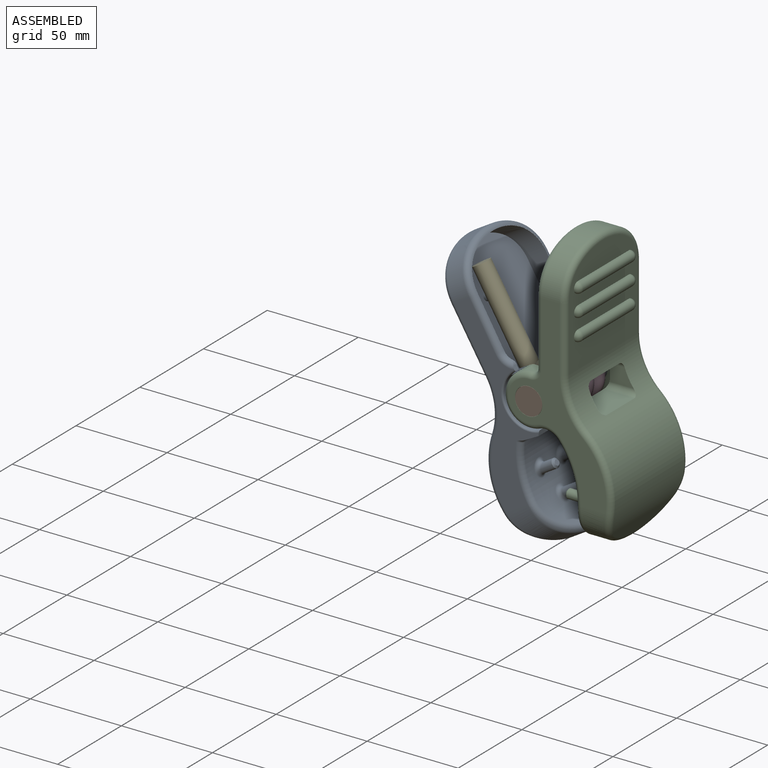
[diagram: assembled view]
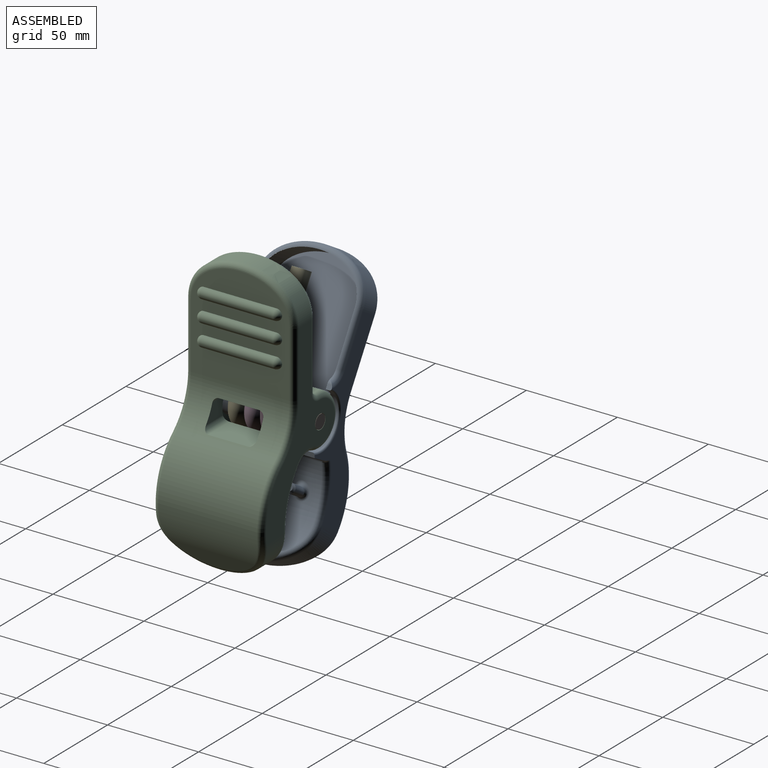
[diagram: assembled view, second angle]
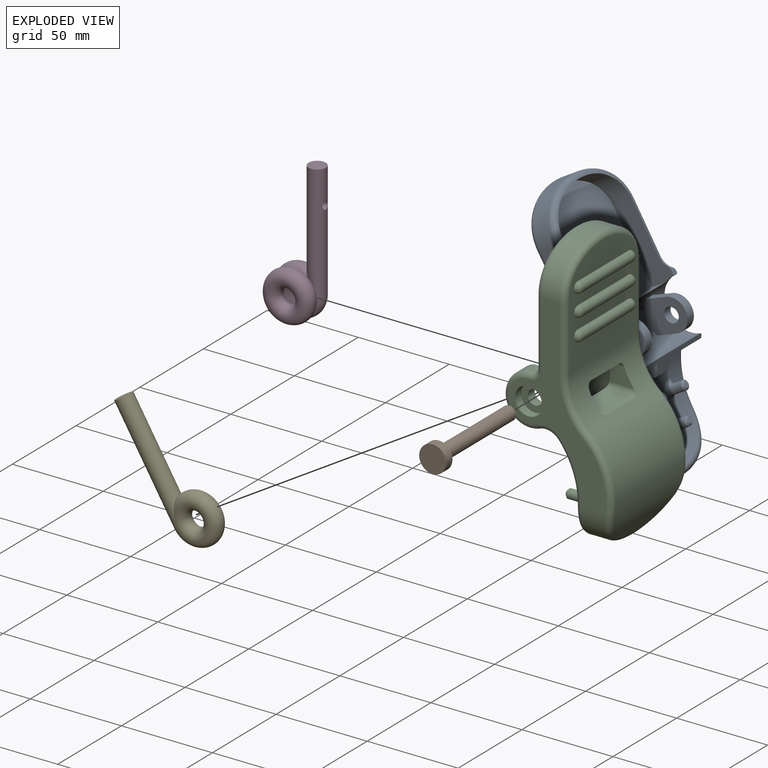
[diagram: exploded view]
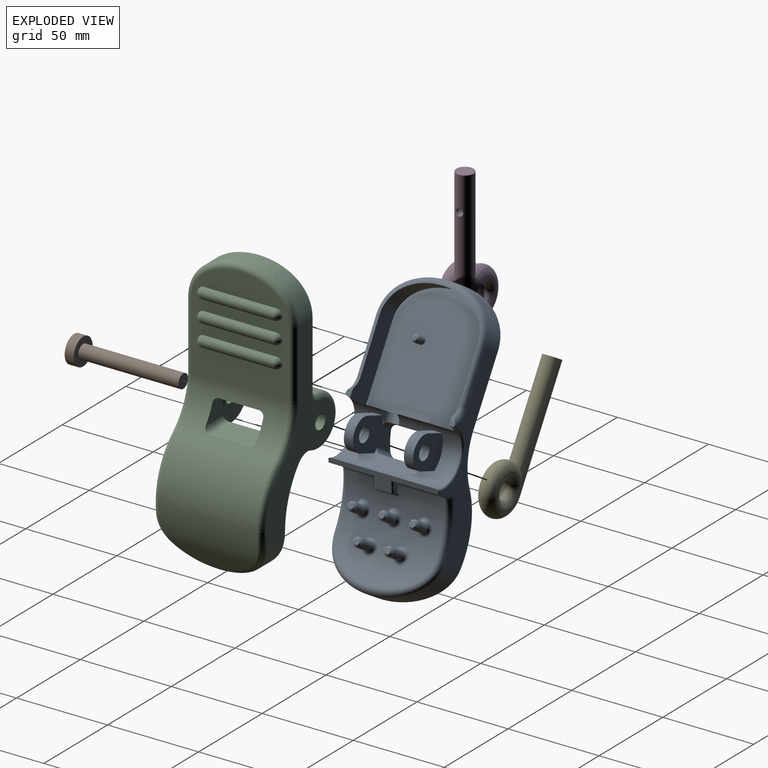
[diagram: exploded view, second angle]
FCSTD DOCUMENT  (FreeCAD 1.0R39109 (Git))
Label: Arrietty's clip
License: Creative Commons Attribution 4.0
LicenseURL: https://creativecommons.org/licenses/by/4.0/
objects: Sketcher::SketchObject×20, PartDesign::Pad×13, PartDesign::Pocket×13, PartDesign::Fillet×9, PartDesign::SubShapeBinder×7, Part::Part2DObjectPython×6, PartDesign::Body×5, App::Link×5, App::FeaturePython×5, PartDesign::Chamfer×4, PartDesign::AdditiveTorus×2, PartDesign::AdditiveCylinder×2, PartDesign::LinearPattern×1, Assembly::JointGroup×1, Assembly::AssemblyObject×1
note: 189 computed .brp shape members not serialized (recipe doc carries the construction recipe); baked Part::Feature solids carry a one-line shape summary decoded from their .brp

FEATURE [Sketcher::SketchObject] Sketch
  ArcFitTolerance = 1e-06
  AttachmentSupport = -> [XZ_Plane]
  FullyConstrained = true
  MakeInternals = false
  MapMode = 5
  Placement = pos=(0,0,0) rot=(1,0,0;1.5708rad)
  sketch-geometry (14):
    g0: ArcOfCircle CenterX=-15.0954 CenterY=25.6039 CenterZ=0 NormalX=0 NormalY=0 NormalZ=1 AngleXU=0 Radius=7.16229 StartAngle=3.13159 EndAngle=4.16755
    g1: LineSegment StartX=-21.7329 StartY=78.0947 StartZ=0 EndX=-22.2573 EndY=25.6755 EndZ=0
    g2: LineSegment StartX=-18.8075 StartY=19.4786 StartZ=0 EndX=-19.0212 EndY=15.2718 EndZ=0
    g3: ArcOfCircle CenterX=-18.7 CenterY=0.75 CenterZ=0 NormalX=0 NormalY=0 NormalZ=1 AngleXU=0 Radius=14.5253 StartAngle=1.59291 EndAngle=4.5442
    g4: LineSegment StartX=-21.1314 StartY=-13.5704 StartZ=0 EndX=-22.7095 EndY=-15.8003 EndZ=0
    g5: LineSegment StartX=-22.7095 StartY=-15.8003 StartZ=0 EndX=-33.1613 EndY=-15.1863 EndZ=0
    g6: ArcOfCircle CenterX=2.34602 CenterY=-43.9263 CenterZ=0 NormalX=0 NormalY=0 NormalZ=1 AngleXU=0 Radius=45.6811 StartAngle=2.46114 EndAngle=3.4782
    g7: LineSegment StartX=-37.7302 StartY=-67.7055 StartZ=0 EndX=-53.7528 EndY=-67.7055 EndZ=0
    g8: ArcOfCircle CenterX=-21.8368 CenterY=-38.5462 CenterZ=0 NormalX=0 NormalY=0 NormalZ=1 AngleXU=0 Radius=41.41 StartAngle=2.29251 EndAngle=3.59063
    g9: ArcOfCircle CenterX=-71.5263 CenterY=17.9123 CenterZ=0 NormalX=0 NormalY=0 NormalZ=1 AngleXU=0 Radius=33.8004 StartAngle=5.4341 EndAngle=6.28319
    g10: LineSegment StartX=-37.7259 StartY=78.0947 StartZ=0 EndX=-37.7259 EndY=17.9123 EndZ=0
    g11: LineSegment StartX=-37.7259 StartY=78.0947 StartZ=0 EndX=-21.7329 EndY=78.0947 EndZ=0
    g12: LineSegment StartX=-59.1416 StartY=-56.5224 StartZ=0 EndX=-53.7528 EndY=-67.7055 EndZ=0
    g13: LineSegment StartX=-40.7715 StartY=-59.0139 StartZ=0 EndX=-37.7302 EndY=-67.7055 EndZ=0
  constraints (30):
    c: Tangent(g1,g0) = -1.5708
    c: Coincident(g2,g0)
    c: Coincident(g5,g4)
    c: Coincident(g6,g5)
    c: Block(g5)
    c: Block(g4)
    c: Horizontal(g9,g9)
    c: Coincident(g10,g9)
    c: Vertical(g10)
    c: Horizontal(g10,g1)
    c: Coincident(g11,g10)
    c: Coincident(g11,g1)
    c: Block(g6)
    c: Block(g8)
    c: Block(g10)
    c: Block(g11)
    c: Block(g1)
    c: Block(g9)
    c: Block(g0)
    c: Tangent(g13,g6) = -1.5708
    c: Tangent(g12,g8) = -1.5708
    c: Coincident(g7,g12)
    c: Coincident(g7,g13)
    c: Coincident(g3,g4)
    c: DistanceX(g3,g-1) = 18.7
    c: DistanceY(g-1,g3) = 0.75
    c: Coincident(g2,g3)
    c: Block(g2)
    c: Block(g13)
    c: Block(g12)
FEATURE [PartDesign::Pad] Pad
  Direction = (0,-1,2e-16)
  Length = 60
  Length2 = 10
  Placement = pos=(0,0,0) rot=(1,0,0;1.5708rad)
  Profile = -> Sketch
  ReferenceAxis = -> Sketch [N_Axis]
  Reversed = true
  Suppressed = false
  Type = 0
FEATURE [Sketcher::SketchObject] Sketch001
  ArcFitTolerance = 1e-06
  AttachmentSupport = -> [YZ_Plane]
  FullyConstrained = false
  MakeInternals = false
  MapMode = 5
  Placement = pos=(0,0,0) rot=(0.57735,0.57735,0.57735;2.0944rad)
  sketch-geometry (24):
    g0: LineSegment [constr] StartX=1.73e-14 StartY=78.0706 StartZ=0 EndX=60 EndY=78.0706 EndZ=0
    g1: LineSegment [constr] StartX=30 StartY=-67.3361 StartZ=0 EndX=30 EndY=78.0706 EndZ=0
    g2: LineSegment StartX=0 StartY=53.8871 StartZ=0 EndX=0 EndY=81.7471 EndZ=0
    g3: LineSegment StartX=0 StartY=81.7471 StartZ=0 EndX=60 EndY=81.7471 EndZ=0
    g4: LineSegment StartX=60 StartY=81.7471 StartZ=0 EndX=60 EndY=53.8871 EndZ=0
    g5: GeomPoint [constr] X=0 Y=53.8871 Z=0
    g6: GeomPoint [constr] X=30 Y=78.0706 Z=0
    g7: GeomPoint [constr] X=60 Y=53.8871 Z=0
    g8: BSplineCurve PolesCount=4 KnotsCount=2 Degree=3 IsPeriodic=0
    g9-g12: Circle [constr] x4 (B-spline internal-alignment scaffolding for g8; pole/knot coordinates omitted)
    g13: GeomPoint [constr] X=0 Y=-43.3361 Z=0
    g14: GeomPoint [constr] X=30 Y=-67.3361 Z=0
    g15: GeomPoint [constr] X=60 Y=-43.3361 Z=0
    g16: BSplineCurve PolesCount=4 KnotsCount=2 Degree=3 IsPeriodic=0
    g17-g20: Circle [constr] x4 (B-spline internal-alignment scaffolding for g16; pole/knot coordinates omitted)
    g21: LineSegment StartX=0 StartY=-43.3361 StartZ=0 EndX=0 EndY=-75.3361 EndZ=0
    g22: LineSegment StartX=0 StartY=-75.3361 StartZ=0 EndX=60 EndY=-75.3361 EndZ=0
    g23: LineSegment StartX=60 StartY=-75.3361 StartZ=0 EndX=60 EndY=-43.3361 EndZ=0
  constraints (53):
    c: Coincident(g0,g-5)
    c: Coincident(g0,g-4)
    c: Symmetric(g-3,g-3,g1)
    c: Coincident(g2,g3)
    c: Horizontal(g3)
    c: Coincident(g3,g4)
    c: Vertical(g4)
    c: Block(g3)
    c: Symmetric(g0,g0,g1)
    c: InternalAlignment(g5,g8)
    c: PointOnObject(g6,g8)
    c: InternalAlignment(g7,g8)
    c: InternalAlignment(g9,g8)
    c: Weight(g9) = 1
    c: InternalAlignment(g10,g8)
    c: Equal(g10,g9)
    c: InternalAlignment(g11,g8)
    c: Equal(g11,g9)
    c: InternalAlignment(g12,g8)
    c: Equal(g12,g9)
    c: PointOnObject(g5,g-2)
    c: Coincident(g6,g1)
    c: PointOnObject(g10,g-2)
    c: Vertical(g11,g3)
    c: Horizontal(g10,g11)
    c: Horizontal(g8,g8)
    c: Coincident(g4,g8)
    c: Coincident(g2,g8)
    c: InternalAlignment(g13,g16)
    c: PointOnObject(g14,g16)
    c: InternalAlignment(g15,g16)
    c: InternalAlignment(g17,g16)
    c: Weight(g17) = 1
    c: InternalAlignment(g18,g16)
    c: Equal(g18,g17)
    c: InternalAlignment(g19,g16)
    c: Equal(g19,g17)
    c: InternalAlignment(g20,g16)
    c: Equal(g20,g17)
    c: PointOnObject(g13,g-2)
    c: Coincident(g14,g1)
    c: Vertical(g-3,g16)
    c: Horizontal(g16,g16)
    c: Vertical(g18,g16)
    c: Vertical(g16,g19)
    c: Horizontal(g18,g19)
    c: DistanceY(g18,g1) = 8
    c: Coincident(g21,g16)
    c: Coincident(g21,g18)
    c: Coincident(g22,g18)
    c: Coincident(g22,g19)
    c: Coincident(g23,g19)
    c: Coincident(g23,g16)
FEATURE [PartDesign::Pocket] Pocket
  BaseFeature = -> Pad
  Direction = (-1,0,0)
  Length = 5
  Length2 = 5
  Placement = pos=(0,0,0) rot=(1,0,0;1.5708rad)
  Profile = -> Sketch001
  ReferenceAxis = -> Sketch001 [N_Axis]
  Suppressed = false
  Type = 1
FEATURE [Sketcher::SketchObject] Sketch002
  ArcFitTolerance = 1e-06
  AttachmentOffset = pos=(0,0,-11) rot=(0,0,1;0rad)
  AttachmentSupport = -> [XZ_Plane]
  FullyConstrained = true
  MakeInternals = false
  MapMode = 5
  Placement = pos=(0,11,-2.4e-15) rot=(1,0,0;1.5708rad)
  sketch-geometry (5):
    g0: LineSegment StartX=-17.0301 StartY=9.27607 StartZ=0 EndX=-33.7011 EndY=12.6048 EndZ=0
    g1: LineSegment StartX=-20.4804 StartY=-8.00383 StartZ=0 EndX=-37.1514 EndY=-4.67514 EndZ=0
    g2: LineSegment StartX=-33.7011 StartY=12.6048 StartZ=0 EndX=-37.1514 EndY=-4.67514 EndZ=0
    g3: ArcOfCircle CenterX=-18.7553 CenterY=0.636121 CenterZ=0 NormalX=0 NormalY=0 NormalZ=1 AngleXU=0 Radius=8.8105 StartAngle=4.51531 EndAngle=7.6569
    g4: Circle CenterX=-18.7553 CenterY=0.636121 CenterZ=0 NormalX=0 NormalY=0 NormalZ=1 AngleXU=0 Radius=4
  constraints (9):
    c: Coincident(g2,g0)
    c: Coincident(g2,g1)
    c: Block(g3)
    c: Tangent(g3,g0) = -1.5708
    c: Tangent(g3,g1) = 1.5708
    c: Perpendicular(g0,g2)
    c: Coincident(g4,g3)
    c: Diameter(g4) = 8
    c: Distance(g0,g0) = 17
FEATURE [PartDesign::Pad] Pad001  label="Hinge"
  BaseFeature = -> Pocket
  Direction = (0,-1,2e-16)
  Length = 38
  Length2 = 10
  Placement = pos=(0,0,0) rot=(1,0,0;1.5708rad)
  Profile = -> Sketch002
  ReferenceAxis = -> Sketch002 [N_Axis]
  Reversed = true
  Suppressed = false
  Type = 0
FEATURE [Sketcher::SketchObject] Sketch003
  ArcFitTolerance = 1e-06
  AttachmentOffset = pos=(0,0,-16) rot=(0,0,1;0rad)
  AttachmentSupport = -> [XZ_Plane]
  ExternalGeometry = -> [Pad001]
  FullyConstrained = false
  MakeInternals = false
  MapMode = 5
  Placement = pos=(0,16,-3.6e-15) rot=(1,0,0;1.5708rad)
  sketch-geometry (5):
    g0: ArcOfCircle CenterX=-18.7553 CenterY=0.636121 CenterZ=0 NormalX=0 NormalY=0 NormalZ=1 AngleXU=0 Radius=8.8105 StartAngle=4.51531 EndAngle=7.6569
    g1: LineSegment StartX=-17.0301 StartY=9.27607 StartZ=0 EndX=-28.3548 EndY=11.5373 EndZ=0
    g2: LineSegment StartX=-20.4804 StartY=-8.00383 StartZ=0 EndX=-31.8051 EndY=-5.74263 EndZ=0
    g3: ArcOfCircle CenterX=-18.7553 CenterY=0.636121 CenterZ=0 NormalX=0 NormalY=0 NormalZ=1 AngleXU=0 Radius=14.5253 StartAngle=2.29279 EndAngle=3.59624
    g4: LineSegment [constr] StartX=-18.7553 StartY=0.636121 StartZ=0 EndX=-24.8837 EndY=1.85978 EndZ=0
  constraints (11):
    c: Coincident(g0,g-3)
    c: Coincident(g0,g-3)
    c: Tangent(g1,g0) = -1.5708
    c: Tangent(g2,g0) = 1.5708
    c: Coincident(g3,g0)
    c: Coincident(g4,g0)
    c: Parallel(g4,g1)
    c: Symmetric(g0,g0,g0)
    c: Equal(g-4,g3)
    c: Coincident(g2,g3)
    c: Coincident(g3,g1)
FEATURE [PartDesign::Pocket] Pocket001  label="Hinge middle pocket"
  BaseFeature = -> Pad001
  Direction = (0,1,-2e-16)
  Length = 28
  Length2 = 5
  Placement = pos=(0,0,0) rot=(1,0,0;1.5708rad)
  Profile = -> Sketch003
  ReferenceAxis = -> Sketch003 [N_Axis]
  Refine = true
  Suppressed = false
  Type = 0
FEATURE [PartDesign::Fillet] Fillet
  Base = -> Pocket001 [Edge28,Edge33,Edge35,Edge37,Edge47]
  BaseFeature = -> Pocket001
  Placement = pos=(0,0,0) rot=(1,0,0;1.5708rad)
  Radius = 3
  SupportTransform = false
  Suppressed = false
  UseAllEdges = false
FEATURE [Sketcher::SketchObject] Sketch004
  ArcFitTolerance = 1e-06
  AttachmentSupport = -> [YZ_Plane]
  ExternalGeometry = -> [Pad]
  FullyConstrained = true
  MakeInternals = false
  MapMode = 5
  Placement = pos=(0,0,0) rot=(0.57735,0.57735,0.57735;2.0944rad)
  sketch-geometry (12):
    g0: LineSegment StartX=16 StartY=6.5 StartZ=0 EndX=16 EndY=-2.5 EndZ=0
    g1: LineSegment StartX=19 StartY=-5.5 StartZ=0 EndX=41 EndY=-5.5 EndZ=0
    g2: LineSegment StartX=44 StartY=-2.5 StartZ=0 EndX=44 EndY=6.5 EndZ=0
    g3: LineSegment StartX=41 StartY=9.5 StartZ=0 EndX=19 EndY=9.5 EndZ=0
    g4: ArcOfCircle CenterX=19 CenterY=6.5 CenterZ=0 NormalX=0 NormalY=0 NormalZ=1 AngleXU=0 Radius=3 StartAngle=1.5708 EndAngle=3.14159
    g5: ArcOfCircle CenterX=19 CenterY=-2.5 CenterZ=0 NormalX=0 NormalY=0 NormalZ=1 AngleXU=0 Radius=3 StartAngle=3.14159 EndAngle=4.71239
    g6: ArcOfCircle CenterX=41 CenterY=-2.5 CenterZ=0 NormalX=0 NormalY=0 NormalZ=1 AngleXU=0 Radius=3 StartAngle=4.71239 EndAngle=6.28319
    g7: ArcOfCircle CenterX=41 CenterY=6.5 CenterZ=0 NormalX=0 NormalY=0 NormalZ=1 AngleXU=0 Radius=3 StartAngle=0 EndAngle=1.5708
    g8: GeomPoint [constr] X=16 Y=9.5 Z=0
    g9: GeomPoint [constr] X=44 Y=-5.5 Z=0
    g10: GeomPoint [constr] X=60 Y=0 Z=0
    g11: LineSegment [constr] StartX=30 StartY=0 StartZ=0 EndX=30 EndY=9.5 EndZ=0
  constraints (28):
    c: Tangent(g0,g4) = -1.5708
    c: Tangent(g0,g5) = -1.5708
    c: Tangent(g1,g5) = -1.5708
    c: Tangent(g1,g6) = -1.5708
    c: Tangent(g2,g6) = -1.5708
    c: Tangent(g2,g7) = -1.5708
    c: Tangent(g3,g7) = -1.5708
    c: Tangent(g3,g4) = -1.5708
    c: Vertical(g0)
    c: Vertical(g2)
    c: Horizontal(g1)
    c: Horizontal(g3)
    c: Equal(g4,g5)
    c: Equal(g5,g6)
    c: Equal(g6,g7)
    c: PointOnObject(g8,g0)
    c: PointOnObject(g8,g3)
    c: PointOnObject(g9,g1)
    c: PointOnObject(g9,g2)
    c: Distance(g0,g2) = 28
    c: Distance(g1,g3) = 15
    c: Radius(g5) = 3
    c: PointOnObject(g10,g-3)
    c: PointOnObject(g10,g-1)
    c: PointOnObject(g11,g3)
    c: Symmetric(g-1,g10,g11)
    c: Symmetric(g5,g6,g11)
    c: DistanceY(g1,g11) = 5.5
FEATURE [PartDesign::Pocket] Pocket002
  BaseFeature = -> Fillet
  Direction = (-1,0,0)
  Length = 5
  Length2 = 5
  Placement = pos=(0,0,0) rot=(1,0,0;1.5708rad)
  Profile = -> Sketch004
  ReferenceAxis = -> Sketch004 [N_Axis]
  Refine = true
  Suppressed = false
  Type = 1
FEATURE [Sketcher::SketchObject] Sketch005
  ArcFitTolerance = 1e-06
  AttachmentSupport = -> [Pocket002]
  FullyConstrained = true
  MakeInternals = false
  MapMode = 5
  Placement = pos=(-37.7259,0,0) rot=(0.707107,0,-0.707107;3.14159rad)
  sketch-geometry (13):
    g0: LineSegment [constr] StartX=-28 StartY=-30 StartZ=0 EndX=-63 EndY=-30 EndZ=0
    g1: ArcOfCircle CenterX=-35 CenterY=-50 CenterZ=0 NormalX=0 NormalY=0 NormalZ=1 AngleXU=0 Radius=3 StartAngle=3.14159 EndAngle=6.28319
    g2: ArcOfCircle CenterX=-35 CenterY=-10 CenterZ=0 NormalX=0 NormalY=0 NormalZ=1 AngleXU=0 Radius=3 StartAngle=0 EndAngle=3.14159
    g3: LineSegment StartX=-38 StartY=-50 StartZ=0 EndX=-38 EndY=-10 EndZ=0
    g4: LineSegment StartX=-32 StartY=-50 StartZ=0 EndX=-32 EndY=-10 EndZ=0
    g5: ArcOfCircle CenterX=-47 CenterY=-50 CenterZ=0 NormalX=0 NormalY=0 NormalZ=1 AngleXU=0 Radius=3 StartAngle=3.14159 EndAngle=6.28319
    g6: ArcOfCircle CenterX=-47 CenterY=-10 CenterZ=0 NormalX=0 NormalY=0 NormalZ=1 AngleXU=0 Radius=3 StartAngle=0 EndAngle=3.14159
    g7: LineSegment StartX=-50 StartY=-50 StartZ=0 EndX=-50 EndY=-10 EndZ=0
    g8: LineSegment StartX=-44 StartY=-50 StartZ=0 EndX=-44 EndY=-10 EndZ=0
    g9: ArcOfCircle CenterX=-59 CenterY=-50 CenterZ=0 NormalX=0 NormalY=0 NormalZ=1 AngleXU=0 Radius=3 StartAngle=3.14159 EndAngle=6.28319
    g10: ArcOfCircle CenterX=-59 CenterY=-10 CenterZ=0 NormalX=0 NormalY=0 NormalZ=1 AngleXU=0 Radius=3 StartAngle=3e-16 EndAngle=3.14159
    g11: LineSegment StartX=-62 StartY=-50 StartZ=0 EndX=-62 EndY=-10 EndZ=0
    g12: LineSegment StartX=-56 StartY=-50 StartZ=0 EndX=-56 EndY=-10 EndZ=0
  constraints (31):
    c: Distance(g0) = 35
    c: Symmetric(g-3,g-3,g0)
    c: Horizontal(g0)
    c: Tangent(g1,g3) = 1.5708
    c: Tangent(g1,g4) = -1.5708
    c: Tangent(g2,g3) = 1.5708
    c: Tangent(g2,g4) = -1.5708
    c: Equal(g1,g2)
    c: Radius(g1) = 3
    c: Symmetric(g2,g1,g0)
    c: DistanceY(g1,g2) = 40
    c: Tangent(g5,g7) = 1.5708
    c: Tangent(g5,g8) = -1.5708
    c: Tangent(g6,g7) = 1.5708
    c: Tangent(g6,g8) = -1.5708
    c: Equal(g5,g6)
    c: Vertical(g7)
    c: Tangent(g9,g11) = 1.5708
    c: Tangent(g9,g12) = -1.5708
    c: Tangent(g10,g11) = 1.5708
    c: Tangent(g10,g12) = -1.5708
    c: Equal(g9,g10)
    c: Vertical(g11)
    c: Horizontal(g5,g1)
    c: Horizontal(g6,g2)
    c: Horizontal(g10,g6)
    c: Equal(g6,g2)
    c: Equal(g10,g2)
    c: Symmetric(g9,g1,g5)
    c: DistanceX(g1,g0) = 7
    c: DistanceX(g6,g2) = 12
FEATURE [PartDesign::Pad] Pad002  label="Bumps"
  BaseFeature = -> Pocket002
  Direction = (-1,0,-2e-16)
  Length = 3.01
  Length2 = 10
  Placement = pos=(0,0,0) rot=(1,0,0;1.5708rad)
  Profile = -> Sketch005
  ReferenceAxis = -> Sketch005 [N_Axis]
  Suppressed = false
  Type = 0
FEATURE [PartDesign::Fillet] Fillet001
  Base = -> Pad002 [Edge39,Edge55,Edge47]
  BaseFeature = -> Pad002
  Placement = pos=(0,0,0) rot=(1,0,0;1.5708rad)
  Radius = 3
  SupportTransform = false
  Suppressed = false
  UseAllEdges = false
FEATURE [Sketcher::SketchObject] Sketch006
  ArcFitTolerance = 1e-06
  AttachmentSupport = -> [YZ_Plane]
  ExternalGeometry = -> [Fillet001]
  FullyConstrained = true
  MakeInternals = false
  MapMode = 5
  Placement = pos=(0,0,0) rot=(0.57735,0.57735,0.57735;2.0944rad)
  sketch-geometry (12):
    g0: LineSegment StartX=3 StartY=53.8571 StartZ=0 EndX=3 EndY=14 EndZ=0
    g1: LineSegment StartX=57 StartY=53.8571 StartZ=0 EndX=57 EndY=14 EndZ=0
    g2: LineSegment StartX=3 StartY=14 StartZ=0 EndX=57 EndY=14 EndZ=0
    g3: GeomPoint [constr] X=3 Y=53.8571 Z=0
    g4: GeomPoint [constr] X=30 Y=75.0406 Z=0
    g5: GeomPoint [constr] X=57 Y=53.8571 Z=0
    g6: BSplineCurve PolesCount=4 KnotsCount=2 Degree=3 IsPeriodic=0
    g7-g10: Circle [constr] x4 (B-spline internal-alignment scaffolding for g6; pole/knot coordinates omitted)
    g11: LineSegment [constr] StartX=30 StartY=75.0406 StartZ=0 EndX=30 EndY=14 EndZ=0
  constraints (28):
    c: Coincident(g0,g-3)
    c: Vertical(g0)
    c: Coincident(g1,g-3)
    c: Vertical(g1)
    c: Coincident(g2,g0)
    c: Coincident(g2,g1)
    c: InternalAlignment(g3,g6)
    c: PointOnObject(g4,g6)
    c: InternalAlignment(g5,g6)
    c: InternalAlignment(g7,g6)
    c: Weight(g7) = 1
    c: InternalAlignment(g8,g6)
    c: Equal(g8,g7)
    c: InternalAlignment(g9,g6)
    c: Equal(g9,g7)
    c: InternalAlignment(g10,g6)
    c: Equal(g10,g7)
    c: Coincident(g3,g0)
    c: PointOnObject(g4,g-3)
    c: Coincident(g5,g1)
    c: PointOnObject(g9,g1)
    c: PointOnObject(g8,g0)
    c: Coincident(g11,g4)
    c: Symmetric(g2,g2,g11)
    c: Vertical(g11)
    c: Horizontal(g8,g9)
    c: Horizontal(g2)
    c: PointOnObject(g1,g-4)
FEATURE [PartDesign::Pocket] Pocket003
  BaseFeature = -> Fillet001
  Direction = (-1,0,0)
  Length = 34
  Length2 = 5
  Placement = pos=(0,0,0) rot=(1,0,0;1.5708rad)
  Profile = -> Sketch006
  ReferenceAxis = -> Sketch006 [N_Axis]
  Refine = true
  Suppressed = false
  Type = 0
FEATURE [Sketcher::SketchObject] Sketch007
  ArcFitTolerance = 1e-06
  AttachmentOffset = pos=(0,0,-31) rot=(0,0,1;0rad)
  AttachmentSupport = -> [YZ_Plane]
  ExternalGeometry = -> [Pocket003]
  FullyConstrained = true
  MakeInternals = false
  MapMode = 5
  Placement = pos=(-31,0,0) rot=(0.57735,0.57735,0.57735;2.0944rad)
  sketch-geometry (14):
    g0: Circle CenterX=21.5 CenterY=-46.2928 CenterZ=0 NormalX=0 NormalY=0 NormalZ=1 AngleXU=0 Radius=2.5
    g1: Circle CenterX=38.5 CenterY=-46.2928 CenterZ=0 NormalX=0 NormalY=0 NormalZ=1 AngleXU=0 Radius=2.5
    g2: Circle CenterX=30 CenterY=-31.5704 CenterZ=0 NormalX=0 NormalY=0 NormalZ=1 AngleXU=0 Radius=2.5
    g3: Circle CenterX=47 CenterY=-31.5704 CenterZ=0 NormalX=0 NormalY=0 NormalZ=1 AngleXU=0 Radius=2.5
    g4: Circle CenterX=13 CenterY=-31.5704 CenterZ=0 NormalX=0 NormalY=0 NormalZ=1 AngleXU=0 Radius=2.5
    g5: LineSegment [constr] StartX=13 StartY=-31.5704 StartZ=0 EndX=30 EndY=-31.5704 EndZ=0
    g6: LineSegment [constr] StartX=30 StartY=-31.5704 StartZ=0 EndX=47 EndY=-31.5704 EndZ=0
    g7: LineSegment [constr] StartX=13 StartY=-31.5704 StartZ=0 EndX=21.5 EndY=-46.2928 EndZ=0
    g8: LineSegment [constr] StartX=30 StartY=-31.5704 StartZ=0 EndX=21.5 EndY=-46.2928 EndZ=0
    g9: LineSegment [constr] StartX=30 StartY=-31.5704 StartZ=0 EndX=38.5 EndY=-46.2928 EndZ=0
    g10: LineSegment [constr] StartX=47 StartY=-31.5704 StartZ=0 EndX=38.5 EndY=-46.2928 EndZ=0
    g11: LineSegment [constr] StartX=38.5 StartY=-46.2928 StartZ=0 EndX=38.5 EndY=-31.5704 EndZ=0
    g12: LineSegment [constr] StartX=21.5 StartY=-46.2928 StartZ=0 EndX=21.5 EndY=-31.5704 EndZ=0
    g13: LineSegment [constr] StartX=30 StartY=-31.5704 StartZ=0 EndX=30 EndY=-13.5704 EndZ=0
  constraints (33):
    c: Diameter(g4) = 5
    c: Equal(g4,g2)
    c: Equal(g4,g3)
    c: Equal(g4,g0)
    c: Equal(g4,g1)
    c: Horizontal(g4,g2)
    c: Horizontal(g2,g3)
    c: Horizontal(g0,g1)
    c: Coincident(g5,g4)
    c: Coincident(g5,g2)
    c: Coincident(g6,g2)
    c: Coincident(g6,g3)
    c: Coincident(g7,g4)
    c: Coincident(g7,g0)
    c: Coincident(g8,g2)
    c: Coincident(g8,g0)
    c: Coincident(g9,g2)
    c: Coincident(g9,g1)
    c: Coincident(g10,g3)
    c: Coincident(g10,g1)
    c: Coincident(g11,g1)
    c: Vertical(g11)
    c: Symmetric(g2,g3,g11)
    c: Coincident(g12,g0)
    c: Symmetric(g5,g5,g12)
    c: Vertical(g12)
    c: Equal(g7,g5)
    c: Equal(g10,g5)
    c: DistanceX(g5,g5) = 17
    c: Coincident(g13,g2)
    c: Symmetric(g-3,g-3,g13)
    c: Vertical(g13)
    c: DistanceY(g13,g13) = 18
FEATURE [PartDesign::Pad] Pad003
  BaseFeature = -> Pocket003
  Direction = (1,0,0)
  Length = 10
  Length2 = 10
  Placement = pos=(0,0,0) rot=(1,0,0;1.5708rad)
  Profile = -> Sketch007
  ReferenceAxis = -> Sketch007 [N_Axis]
  Suppressed = false
  Type = 3
  UpToFace = -> Pocket003 [Face83]
FEATURE [PartDesign::Chamfer] Chamfer
  Angle = 45
  Base = -> Pad003 [Edge250,Edge248,Edge244,Edge252,Edge246]
  BaseFeature = -> Pad003
  ChamferType = 0
  FlipDirection = false
  Placement = pos=(0,0,0) rot=(1,0,0;1.5708rad)
  Size = 1
  Size2 = 1
  SupportTransform = false
  Suppressed = false
  UseAllEdges = false
FEATURE [PartDesign::Fillet] Fillet002
  Base = -> Chamfer [Edge14,Edge13,Edge3,Edge15,Edge12]
  BaseFeature = -> Chamfer
  Placement = pos=(0,0,0) rot=(1,0,0;1.5708rad)
  Radius = 2
  SupportTransform = false
  Suppressed = false
  UseAllEdges = false
FEATURE [Part::Part2DObjectPython] Clone2D  label="Sketch (2D)"  # Draft 2D object (typed FeaturePython)
  Fuse = false
  Objects = -> [Sketch]
  Placement = pos=(1,0,0) rot=(1,0,0;1.5708rad)
  Scale = (-1,1,1)
FEATURE [PartDesign::SubShapeBinder] Binder
  BindCopyOnChange = 0
  BindMode = 0
  ClaimChildren = false
  Context = -> Body001 [Binder.]
  Fuse = false
  MakeFace = true
  OffsetFill = false
  OffsetIntersection = false
  OffsetJoinType = 0
  OffsetOpenResult = false
  PartialLoad = false
  Relative = true
  Support = -> [Body[Fillet002.,Fillet002.]]
  _Version = 2
FEATURE [Sketcher::SketchObject] Sketch008
  ArcFitTolerance = 1e-06
  AttachmentSupport = -> [XZ_Plane001]
  ExternalGeometry = -> [Binder]
  FullyConstrained = true
  MakeInternals = false
  MapMode = 5
  Placement = pos=(0,0,0) rot=(1,0,0;1.5708rad)
  sketch-geometry (13):
    g0: LineSegment StartX=22.7329 StartY=78.0947 StartZ=0 EndX=38.7259 EndY=78.0947 EndZ=0
    g1: LineSegment StartX=38.7259 StartY=78.0947 StartZ=0 EndX=38.7259 EndY=17.9123 EndZ=0
    g2: LineSegment StartX=41.7715 StartY=-59.0139 StartZ=0 EndX=38.7302 EndY=-67.7055 EndZ=0
    g3: LineSegment StartX=38.7302 StartY=-67.7055 StartZ=0 EndX=54.7528 EndY=-67.7055 EndZ=0
    g4: LineSegment StartX=54.7528 StartY=-67.7055 StartZ=0 EndX=60.1416 EndY=-56.5224 EndZ=0
    g5: LineSegment StartX=22.7329 StartY=78.0947 StartZ=0 EndX=22.7329 EndY=17.7186 EndZ=0
    g6: Circle CenterX=18.7 CenterY=0.75 CenterZ=0 NormalX=0 NormalY=0 NormalZ=1 AngleXU=0 Radius=4
    g7: ArcOfCircle CenterX=18.7 CenterY=0.75 CenterZ=0 NormalX=0 NormalY=0 NormalZ=1 AngleXU=0 Radius=14 StartAngle=1.51 EndAngle=5.07421
    g8: ArcOfCircle CenterX=72.5263 CenterY=17.9123 CenterZ=0 NormalX=0 NormalY=0 NormalZ=1 AngleXU=0 Radius=33.8004 StartAngle=3.14159 EndAngle=3.99067
    g9: ArcOfCircle CenterX=22.8368 CenterY=-38.5462 CenterZ=0 NormalX=0 NormalY=0 NormalZ=1 AngleXU=0 Radius=41.41 StartAngle=5.83414 EndAngle=7.13227
    g10: ArcOfCircle CenterX=-1.34602 CenterY=-43.9263 CenterZ=0 NormalX=0 NormalY=0 NormalZ=1 AngleXU=0 Radius=45.6811 StartAngle=5.94658 EndAngle=6.96364
    g11: ArcOfCircle CenterX=26.9429 CenterY=-21.0289 CenterZ=0 NormalX=0 NormalY=0 NormalZ=1 AngleXU=0 Radius=9.28663 StartAngle=0.680452 EndAngle=1.93262
    g12: ArcOfCircle CenterX=19.7329 CenterY=17.7186 CenterZ=0 NormalX=0 NormalY=0 NormalZ=1 AngleXU=0 Radius=3 StartAngle=4.65159 EndAngle=6.28319
  constraints (27):
    c: Coincident(g0,g1)
    c: Coincident(g2,g3)
    c: Coincident(g3,g4)
    c: Coincident(g5,g0)
    c: Vertical(g5)
    c: Coincident(g7,g6)
    c: Coincident(g8,g1)
    c: Horizontal(g1,g8)
    c: Coincident(g9,g8)
    c: Tangent(g9,g4) = -1.5708
    c: Tangent(g10,g2) = 1.5708
    c: Tangent(g11,g7) = 1.5708
    c: Tangent(g11,g10) = -1.5708
    c: Coincident(g12,g5)
    c: Tangent(g12,g7) = 1.5708
    c: Horizontal(g12,g5)
    c: Block(g10)
    c: Block(g2)
    c: Block(g4)
    c: Block(g9)
    c: Block(g8)
    c: Block(g1)
    c: Block(g0)
    c: Radius(g7) = 14
    c: Equal(g-3,g6)
    c: Symmetric(g-4,g6,g-2)
    c: Radius(g12) = 3
FEATURE [PartDesign::Pad] Pad004
  Direction = (0,-1,2e-16)
  Length = 60
  Length2 = 10
  Placement = pos=(0,0,0) rot=(1,0,0;1.5708rad)
  Profile = -> Sketch008
  ReferenceAxis = -> Sketch008 [N_Axis]
  Reversed = true
  Suppressed = false
  Type = 0
FEATURE [Sketcher::SketchObject] Sketch009
  ArcFitTolerance = 1e-06
  AttachmentOffset = pos=(0,0,-10.5) rot=(0,0,1;0rad)
  AttachmentSupport = -> [XZ_Plane001]
  ExternalGeometry = -> [Pad004]
  FullyConstrained = true
  MakeInternals = false
  MapMode = 5
  Placement = pos=(0,10.5,-2.3e-15) rot=(1,0,0;1.5708rad)
  sketch-geometry (6):
    g0: ArcOfCircle CenterX=18.7 CenterY=0.75 CenterZ=0 NormalX=0 NormalY=0 NormalZ=1 AngleXU=0 Radius=14 StartAngle=1.5708 EndAngle=4.71239
    g1: LineSegment StartX=32.0154 StartY=-13.25 StartZ=0 EndX=18.7 EndY=-13.25 EndZ=0
    g2: ArcOfCircle CenterX=18.7 CenterY=0.75 CenterZ=0 NormalX=0 NormalY=0 NormalZ=1 AngleXU=0 Radius=14 StartAngle=5.61154 EndAngle=7.41531
    g3: LineSegment StartX=29.6591 StartY=-7.9619 StartZ=0 EndX=32.0154 EndY=-13.25 EndZ=0
    g4: LineSegment StartX=22.7329 StartY=17.7186 StartZ=0 EndX=24.6463 EndY=13.4244 EndZ=0
    g5: LineSegment StartX=18.7 StartY=14.75 StartZ=0 EndX=22.7329 EndY=17.7186 EndZ=0
  constraints (17):
    c: Coincident(g0,g-3)
    c: PointOnObject(g0,g-3)
    c: Vertical(g0,g0)
    c: Vertical(g0,g0)
    c: Coincident(g1,g0)
    c: Horizontal(g1)
    c: PointOnObject(g1,g-4)
    c: Coincident(g2,g0)
    c: Coincident(g3,g2)
    c: Coincident(g3,g1)
    c: PointOnObject(g-5,g3)
    c: Equal(g0,g2)
    c: Coincident(g4,g-5)
    c: Coincident(g4,g2)
    c: Parallel(g4,g3)
    c: Coincident(g5,g0)
    c: Coincident(g5,g4)
FEATURE [PartDesign::Pocket] Pocket004
  BaseFeature = -> Pad004
  Direction = (0,1,-2e-16)
  Length = 39
  Length2 = 5
  Placement = pos=(0,0,0) rot=(1,0,0;1.5708rad)
  Profile = -> Sketch009
  ReferenceAxis = -> Sketch009 [N_Axis]
  Refine = true
  Suppressed = false
  Type = 0
FEATURE [Part::Part2DObjectPython] Clone2D001  label="Sketch001 (2D)"  # Draft 2D object (typed FeaturePython)
  Fuse = false
  Objects = -> [Sketch001]
  Placement = pos=(0,0,0) rot=(0.57735,0.57735,0.57735;2.0944rad)
  Scale = (1,1,1)
FEATURE [PartDesign::Pocket] Pocket005
  BaseFeature = -> Pocket004
  Direction = (-1,-1e-16,1e-16)
  Length = 5
  Length2 = 5
  Placement = pos=(0,0,0) rot=(1,0,0;1.5708rad)
  Profile = -> Clone2D001
  ReferenceAxis = -> Clone2D001 [N_Axis]
  Reversed = true
  Suppressed = false
  Type = 1
FEATURE [PartDesign::Fillet] Fillet003
  Base = -> Pocket005 [Edge42,Edge39]
  BaseFeature = -> Pocket005
  Placement = pos=(0,0,0) rot=(1,0,0;1.5708rad)
  Radius = 3
  SupportTransform = false
  Suppressed = false
  UseAllEdges = false
FEATURE [PartDesign::Fillet] Fillet004
  Base = -> Fillet002 [Edge55,Edge67]
  BaseFeature = -> Fillet002
  Placement = pos=(0,0,0) rot=(1,0,0;1.5708rad)
  Radius = 1
  SupportTransform = false
  Suppressed = false
  UseAllEdges = false
FEATURE [Part::Part2DObjectPython] Clone2D002  label="Sketch004 (2D)"  # Draft 2D object (typed FeaturePython)
  Fuse = false
  Objects = -> [Sketch004]
  Placement = pos=(0,0,0) rot=(0.57735,0.57735,0.57735;2.0944rad)
  Scale = (1,1,1)
FEATURE [PartDesign::Pocket] Pocket006
  BaseFeature = -> Fillet003
  Direction = (-1,-1e-16,1e-16)
  Length = 5
  Length2 = 5
  Placement = pos=(0,0,0) rot=(1,0,0;1.5708rad)
  Profile = -> Clone2D002
  ReferenceAxis = -> Clone2D002 [N_Axis]
  Reversed = true
  Suppressed = false
  Type = 1
FEATURE [Part::Part2DObjectPython] Clone2D003  label="Sketch005 (2D)"  # Draft 2D object (typed FeaturePython)
  Fuse = false
  Objects = -> [Sketch005]
  Placement = pos=(38.72,0,0) rot=(0.707107,0,-0.707107;3.14159rad)
  Scale = (1,1,1)
FEATURE [Sketcher::SketchObject] Sketch010
  ArcFitTolerance = 1e-06
  AttachmentSupport = -> [Pocket006]
  ExternalGeometry = -> [Clone2D003]
  FullyConstrained = true
  MakeInternals = false
  MapMode = 5
  Placement = pos=(38.7259,0,9.1e-15) rot=(0.707107,0,0.707107;3.14159rad)
  sketch-geometry (12):
    g0: ArcOfCircle CenterX=35 CenterY=-50 CenterZ=0 NormalX=0 NormalY=0 NormalZ=1 AngleXU=0 Radius=3 StartAngle=3.14159 EndAngle=6.28319
    g1: ArcOfCircle CenterX=35 CenterY=-10 CenterZ=0 NormalX=0 NormalY=0 NormalZ=1 AngleXU=0 Radius=3 StartAngle=2.33e-14 EndAngle=3.14159
    g2: LineSegment StartX=32 StartY=-50 StartZ=0 EndX=32 EndY=-10 EndZ=0
    g3: LineSegment StartX=38 StartY=-50 StartZ=0 EndX=38 EndY=-10 EndZ=0
    g4: ArcOfCircle CenterX=47 CenterY=-50 CenterZ=0 NormalX=0 NormalY=0 NormalZ=1 AngleXU=0 Radius=3 StartAngle=3.14159 EndAngle=6.28319
    g5: ArcOfCircle CenterX=47 CenterY=-10 CenterZ=0 NormalX=0 NormalY=0 NormalZ=1 AngleXU=0 Radius=3 StartAngle=2.32e-14 EndAngle=3.14159
    g6: LineSegment StartX=44 StartY=-50 StartZ=0 EndX=44 EndY=-10 EndZ=0
    g7: LineSegment StartX=50 StartY=-50 StartZ=0 EndX=50 EndY=-10 EndZ=0
    g8: ArcOfCircle CenterX=59 CenterY=-50 CenterZ=0 NormalX=0 NormalY=0 NormalZ=1 AngleXU=0 Radius=3 StartAngle=3.14159 EndAngle=6.28319
    g9: ArcOfCircle CenterX=59 CenterY=-10 CenterZ=0 NormalX=0 NormalY=0 NormalZ=1 AngleXU=0 Radius=3 StartAngle=4.5189e-12 EndAngle=3.14159
    g10: LineSegment StartX=56 StartY=-50 StartZ=0 EndX=56 EndY=-10 EndZ=0
    g11: LineSegment StartX=62 StartY=-50 StartZ=0 EndX=62 EndY=-10 EndZ=0
  constraints (24):
    c: Tangent(g0,g2) = 1.5708
    c: Tangent(g0,g3) = -1.5708
    c: Tangent(g1,g2) = 1.5708
    c: Tangent(g1,g3) = -1.5708
    c: Equal(g0,g1)
    c: Vertical(g2)
    c: Tangent(g4,g6) = 1.5708
    c: Tangent(g4,g7) = -1.5708
    c: Tangent(g5,g6) = 1.5708
    c: Tangent(g5,g7) = -1.5708
    c: Equal(g4,g5)
    c: Vertical(g6)
    c: Tangent(g8,g10) = 1.5708
    c: Tangent(g8,g11) = -1.5708
    c: Tangent(g9,g10) = 1.5708
    c: Tangent(g9,g11) = -1.5708
    c: Equal(g8,g9)
    c: Vertical(g10)
    c: Coincident(g-4,g0)
    c: Coincident(g1,g-3)
    c: Coincident(g5,g-5)
    c: Coincident(g4,g-6)
    c: Coincident(g8,g-7)
    c: Coincident(g9,g-8)
FEATURE [PartDesign::Pad] Pad005
  BaseFeature = -> Pocket006
  Direction = (1,0,-2e-16)
  Length = 3.01
  Length2 = 10
  Placement = pos=(0,0,0) rot=(1,0,0;1.5708rad)
  Profile = -> Sketch010
  ReferenceAxis = -> Sketch010 [N_Axis]
  Suppressed = false
  Type = 0
FEATURE [PartDesign::Fillet] Fillet005
  Base = -> Pad005 [Edge156,Edge164,Edge172]
  BaseFeature = -> Pad005
  Placement = pos=(0,0,0) rot=(1,0,0;1.5708rad)
  Radius = 3
  SupportTransform = false
  Suppressed = false
  UseAllEdges = false
FEATURE [Part::Part2DObjectPython] Clone2D004  label="Sketch006 (2D)"  # Draft 2D object (typed FeaturePython)
  Fuse = false
  Objects = -> [Sketch006]
  Placement = pos=(0,0,0) rot=(0.57735,0.57735,0.57735;2.0944rad)
  Scale = (1,1,1)
FEATURE [PartDesign::Pocket] Pocket007
  BaseFeature = -> Fillet005
  Direction = (-1,-1e-16,1e-16)
  Length = 34
  Length2 = 5
  Placement = pos=(0,0,0) rot=(1,0,0;1.5708rad)
  Profile = -> Clone2D004
  ReferenceAxis = -> Clone2D004 [N_Axis]
  Refine = true
  Reversed = true
  Suppressed = false
  Type = 0
FEATURE [Part::Part2DObjectPython] Clone2D005  label="Sketch007 (2D)"  # Draft 2D object (typed FeaturePython)
  Fuse = false
  Objects = -> [Sketch007]
  Placement = pos=(31,0,-78) rot=(0.57735,0.57735,0.57735;2.0944rad)
  Scale = (1,-1,1)
FEATURE [PartDesign::Pad] Pad006
  BaseFeature = -> Pocket007
  Direction = (1,-1e-16,2e-16)
  Length = 10
  Length2 = 10
  Placement = pos=(0,0,0) rot=(1,0,0;1.5708rad)
  Profile = -> Clone2D005
  ReferenceAxis = -> Clone2D005 [N_Axis]
  Suppressed = false
  Type = 3
  UpToFace = -> Pocket007 [Face75]
FEATURE [PartDesign::Chamfer] Chamfer001
  Angle = 45
  Base = -> Pad006 [Edge213,Edge217,Edge219,Edge221,Edge215]
  BaseFeature = -> Pad006
  ChamferType = 0
  FlipDirection = false
  Placement = pos=(0,0,0) rot=(1,0,0;1.5708rad)
  Size = 1
  Size2 = 1
  SupportTransform = false
  Suppressed = false
  UseAllEdges = false
FEATURE [PartDesign::Fillet] Fillet006
  Base = -> Chamfer001 [Edge3,Edge12,Edge13,Edge15,Edge14]
  BaseFeature = -> Chamfer001
  Placement = pos=(0,0,0) rot=(1,0,0;1.5708rad)
  Radius = 2
  SupportTransform = false
  Suppressed = false
  UseAllEdges = false
FEATURE [Sketcher::SketchObject] Sketch011
  ArcFitTolerance = 1e-06
  AttachmentSupport = -> [Fillet006]
  ExternalGeometry = -> [Fillet006]
  FullyConstrained = true
  MakeInternals = false
  MapMode = 5
  Placement = pos=(0,8e-16,0) rot=(1,0,0;1.5708rad)
  sketch-geometry (1):
    g0: Circle CenterX=18.7 CenterY=0.75 CenterZ=0 NormalX=0 NormalY=0 NormalZ=1 AngleXU=0 Radius=7.5
  constraints (2):
    c: Diameter(g0) = 15
    c: Coincident(g0,g-3)
FEATURE [PartDesign::Pocket] Pocket008
  BaseFeature = -> Fillet006
  Direction = (0,1,-2e-16)
  Length = 5
  Length2 = 5
  Placement = pos=(0,0,0) rot=(1,0,0;1.5708rad)
  Profile = -> Sketch011
  ReferenceAxis = -> Sketch011 [N_Axis]
  Suppressed = false
  Type = 0
FEATURE [PartDesign::SubShapeBinder] Binder001
  BindCopyOnChange = 0
  BindMode = 0
  ClaimChildren = false
  Context = -> Body002 [Binder001.]
  Fuse = false
  MakeFace = true
  OffsetFill = false
  OffsetIntersection = false
  OffsetJoinType = 0
  OffsetOpenResult = false
  PartialLoad = false
  Relative = true
  Support = -> [Body001[Pocket008.Edge75]]
  _Version = 2
FEATURE [Sketcher::SketchObject] Sketch012
  ArcFitTolerance = 1e-06
  AttachmentSupport = -> [Binder001]
  ExternalGeometry = -> [Binder001]
  FullyConstrained = true
  MakeInternals = false
  MapMode = 5
  Placement = pos=(0,8e-16,0) rot=(0,0.707107,0.707107;3.14159rad)
  sketch-geometry (1):
    g0: Circle CenterX=-18.7 CenterY=0.75 CenterZ=0 NormalX=0 NormalY=0 NormalZ=1 AngleXU=0 Radius=7.4
  constraints (2):
    c: Coincident(g0,g-3)
    c: Distance(g0,g-3) = 0.1
FEATURE [PartDesign::SubShapeBinder] Binder002
  BindCopyOnChange = 0
  BindMode = 0
  ClaimChildren = false
  Context = -> Body002 [Binder002.]
  Fuse = false
  MakeFace = true
  OffsetFill = false
  OffsetIntersection = false
  OffsetJoinType = 0
  OffsetOpenResult = false
  PartialLoad = false
  Relative = true
  Support = -> [Body001[Pocket008.Face68]]
  _Version = 2
FEATURE [PartDesign::Pad] Pad007
  Direction = (0,1,-2e-16)
  Length = 10
  Length2 = 10
  Profile = -> Sketch012
  ReferenceAxis = -> Sketch012 [N_Axis]
  Suppressed = false
  Type = 3
  UpToFace = -> Binder002 [Face1]
FEATURE [Sketcher::SketchObject] Sketch013
  ArcFitTolerance = 1e-06
  AttachmentSupport = -> [Pad007]
  ExternalGeometry = -> [Binder002]
  FullyConstrained = true
  MakeInternals = false
  MapMode = 5
  Placement = pos=(0,5,-1.1e-15) rot=(0,0.707107,0.707107;3.14159rad)
  sketch-geometry (1):
    g0: Circle CenterX=-18.7 CenterY=0.75 CenterZ=0 NormalX=0 NormalY=0 NormalZ=1 AngleXU=0 Radius=3.8
  constraints (2):
    c: Coincident(g0,g-3)
    c: Distance(g0,g-3) = 0.2
FEATURE [PartDesign::SubShapeBinder] Binder003
  BindCopyOnChange = 0
  BindMode = 0
  ClaimChildren = false
  Context = -> Body002 [Binder003.]
  Fuse = false
  MakeFace = true
  OffsetFill = false
  OffsetIntersection = false
  OffsetJoinType = 0
  OffsetOpenResult = false
  PartialLoad = false
  Relative = true
  Support = -> [Body001[Pocket008.Edge84]]
  _Version = 2
FEATURE [PartDesign::Pad] Pad008
  BaseFeature = -> Pad007
  Direction = (0,1,-2e-16)
  Length = 10
  Length2 = 10
  Profile = -> Sketch013
  ReferenceAxis = -> Sketch013 [N_Axis]
  Suppressed = false
  Type = 3
  UpToFace = -> Binder003 [Face1]
FEATURE [PartDesign::Body] Body002  label="Pin"
  AllowCompound = false
  Group = -> [Binder001,Sketch012,Binder002,Pad007,Sketch013,Binder003,Pad008]
  Origin = -> Origin002
  Tip = -> Pad008
FEATURE [Sketcher::SketchObject] Sketch014
  ArcFitTolerance = 1e-06
  AttachmentOffset = pos=(0,0,-30) rot=(0,0,1;0rad)
  AttachmentSupport = -> [XZ_Plane]
  ExternalGeometry = -> [Fillet004]
  FullyConstrained = false
  MakeInternals = false
  MapMode = 5
  Placement = pos=(0,30,-6.7e-15) rot=(1,0,0;1.5708rad)
  sketch-geometry (8):
    g0: LineSegment StartX=-22.7095 StartY=-15.8003 StartZ=0 EndX=-26.3038 EndY=-20.8792 EndZ=0
    g1: LineSegment StartX=-27.1201 StartY=-21.3015 StartZ=0 EndX=-31.5897 EndY=-21.3015 EndZ=0
    g2: ArcOfCircle CenterX=-31.5897 CenterY=-20.3015 CenterZ=0 NormalX=0 NormalY=0 NormalZ=1 AngleXU=0 Radius=1 StartAngle=1.5708 EndAngle=4.71239
    g3: ArcOfCircle CenterX=-31.5897 CenterY=-17.3015 CenterZ=0 NormalX=0 NormalY=0 NormalZ=1 AngleXU=0 Radius=2 StartAngle=4.71239 EndAngle=7.85189
    g4: ArcOfCircle CenterX=-27.1201 CenterY=-20.3015 CenterZ=0 NormalX=0 NormalY=0 NormalZ=1 AngleXU=0 Radius=1 StartAngle=4.71239 EndAngle=5.66732
    g5: LineSegment StartX=-31.5855 StartY=-15.3015 StartZ=0 EndX=-31.5855 EndY=-15.1015 EndZ=0
    g6: LineSegment StartX=-31.5855 StartY=-15.1015 StartZ=0 EndX=-22.215 EndY=-15.1015 EndZ=0
    g7: LineSegment StartX=-22.215 StartY=-15.1015 StartZ=0 EndX=-22.7095 EndY=-15.8003 EndZ=0
  constraints (20):
    c: Horizontal(g1)
    c: Tangent(g1,g2) = 1.5708
    c: Tangent(g2,g3) = 1.5708
    c: Vertical(g3,g-3)
    c: Vertical(g3,g2)
    c: Radius(g3) = 2
    c: PointOnObject(g0,g-4)
    c: Coincident(g4,g1)
    c: Vertical(g4,g1)
    c: Tangent(g4,g0) = 1.5708
    c: Radius(g4) = 1
    c: Radius(g2) = 1
    c: Distance(g5) = 0.2
    c: Coincident(g5,g3)
    c: Vertical(g5)
    c: Coincident(g6,g5)
    c: PointOnObject(g6,g-4)
    c: Horizontal(g6)
    c: Coincident(g7,g6)
    c: Coincident(g7,g0)
FEATURE [PartDesign::Pad] Pad009  label="Hook"
  BaseFeature = -> Fillet004
  Direction = (0,-1,2e-16)
  Length = 10
  Length2 = 10
  Midplane = true
  Placement = pos=(0,0,0) rot=(1,0,0;1.5708rad)
  Profile = -> Sketch014
  ReferenceAxis = -> Sketch014 [N_Axis]
  Refine = true
  Suppressed = false
  Type = 0
FEATURE [PartDesign::Fillet] Fillet007
  Base = -> Pad009 [Edge89,Edge81]
  BaseFeature = -> Pad009
  Placement = pos=(0,0,0) rot=(1,0,0;1.5708rad)
  Radius = 1
  SupportTransform = false
  Suppressed = false
  UseAllEdges = false
FEATURE [Sketcher::SketchObject] Sketch015
  ArcFitTolerance = 1e-06
  AttachmentOffset = pos=(0,0,-30) rot=(0,0,1;0rad)
  AttachmentSupport = -> [XZ_Plane001]
  ExternalGeometry = -> [Pocket008]
  FullyConstrained = true
  MakeInternals = false
  MapMode = 5
  Placement = pos=(0,30,-6.7e-15) rot=(1,0,0;1.5708rad)
  sketch-geometry (7):
    g0: LineSegment StartX=29.8322 StartY=-21.0422 StartZ=0 EndX=30.5809 EndY=-21.0422 EndZ=0
    g1: ArcOfCircle CenterX=29.8322 CenterY=-16.1232 CenterZ=0 NormalX=0 NormalY=0 NormalZ=1 AngleXU=0 Radius=2 StartAngle=1.5708 EndAngle=4.92796
    g2: ArcOfCircle CenterX=30.5809 CenterY=-19.5422 CenterZ=0 NormalX=0 NormalY=0 NormalZ=1 AngleXU=0 Radius=1.5 StartAngle=4.71239 EndAngle=8.06956
    g3: LineSegment StartX=32.9335 StartY=-9.71874 StartZ=0 EndX=33.152 EndY=-14.1232 EndZ=0
    g4: ArcOfCircle CenterX=29.8322 CenterY=-16.1232 CenterZ=0 NormalX=0 NormalY=0 NormalZ=1 AngleXU=0 Radius=4.91899 StartAngle=1.92738 EndAngle=4.71239
    g5: LineSegment StartX=29.8322 StartY=-14.1232 StartZ=0 EndX=33.152 EndY=-14.1232 EndZ=0
    g6: LineSegment StartX=28.1151 StartY=-11.5137 StartZ=0 EndX=32.9335 EndY=-9.71874 EndZ=0
  constraints (19):
    c: Horizontal(g0)
    c: Radius(g1) = 2
    c: Coincident(g2,g0)
    c: Vertical(g2,g0)
    c: Radius(g2) = 1.5
    c: Vertical(g1,g1)
    c: Tangent(g2,g1) = 1.5708
    c: Coincident(g4,g1)
    c: Coincident(g4,g0)
    c: Vertical(g1,g0)
    c: Coincident(g5,g1)
    c: Horizontal(g5)
    c: Coincident(g3,g5)
    c: Coincident(g6,g3)
    c: Tangent(g6,g4) = 1.5708
    c: PointOnObject(g3,g-4)
    c: Block(g0)
    c: Block(g5)
    c: Block(g6)
FEATURE [PartDesign::Pad] Pad010
  BaseFeature = -> Pocket008
  Direction = (0,-1,2e-16)
  Length = 10
  Length2 = 10
  Midplane = true
  Placement = pos=(0,0,0) rot=(1,0,0;1.5708rad)
  Profile = -> Sketch015
  ReferenceAxis = -> Sketch015 [N_Axis]
  Suppressed = false
  Type = 0
FEATURE [PartDesign::Fillet] Fillet008
  Base = -> Pad010 [Edge70,Edge62]
  BaseFeature = -> Pad010
  Placement = pos=(0,0,0) rot=(1,0,0;1.5708rad)
  Radius = 0.85
  SupportTransform = false
  Suppressed = false
  UseAllEdges = false
FEATURE [PartDesign::AdditiveTorus] Torus
  Angle1 = -180
  Angle2 = 180
  Angle3 = 360
  AttacherType = Attacher::AttachEngine3D
  AttachmentSupport = -> [XZ_Plane004]
  MapMode = 2
  Placement = pos=(0,0,0) rot=(1,0,0;1.5708rad)
  Radius1 = 9
  Radius2 = 4.75
  Refine = true
  Suppressed = false
FEATURE [PartDesign::LinearPattern] LinearPattern
  BaseFeature = -> Torus
  Direction = -> Y_Axis004
  Length = 8.75
  Mode = 0
  Occurrences = 2
  Offset = 8.75
  Originals = -> [Torus]
  Placement = pos=(0,0,0) rot=(1,0,0;1.5708rad)
  Reversed = true
  Suppressed = false
  TransformMode = 0
FEATURE [Sketcher::SketchObject] Sketch016
  ArcFitTolerance = 1e-06
  AttachmentSupport = -> [Fillet008]
  ExternalGeometry = -> [Fillet008]
  FullyConstrained = true
  MakeInternals = false
  MapMode = 5
  Placement = pos=(1.6e-15,-3.1e-15,14) rot=(0,0,1;3.14159rad)
  sketch-geometry (4):
    g0: LineSegment StartX=-27.8899 StartY=-34.25 StartZ=0 EndX=-24.3899 EndY=-34.25 EndZ=0
    g1: LineSegment StartX=-24.3899 StartY=-34.25 StartZ=0 EndX=-24.3899 EndY=-43.75 EndZ=0
    g2: LineSegment StartX=-24.3899 StartY=-43.75 StartZ=0 EndX=-27.8899 EndY=-43.75 EndZ=0
    g3: ArcOfCircle CenterX=-27.8899 CenterY=-39 CenterZ=0 NormalX=0 NormalY=0 NormalZ=1 AngleXU=0 Radius=4.75 StartAngle=1.5708 EndAngle=4.71239
  constraints (13):
    c: PointOnObject(g0,g-3)
    c: Horizontal(g0)
    c: Coincident(g0,g1)
    c: PointOnObject(g1,g-3)
    c: Coincident(g1,g2)
    c: Horizontal(g2)
    c: Vertical(g0,g2)
    c: Coincident(g3,g0)
    c: Coincident(g3,g2)
    c: Vertical(g3,g0)
    c: Radius(g3) = 4.75
    c: DistanceX(g2,g2) = 3.5
    c: DistanceY(g-3,g1) = 5.75
FEATURE [PartDesign::Pocket] Pocket009
  BaseFeature = -> Fillet008
  Direction = (0,0,-1)
  Length = 13
  Length2 = 5
  Placement = pos=(0,0,0) rot=(1,0,0;1.5708rad)
  Profile = -> Sketch016
  ReferenceAxis = -> Sketch016 [N_Axis]
  Suppressed = false
  Type = 0
FEATURE [PartDesign::AdditiveCylinder] Cylinder
  Angle = 360
  AttacherType = Attacher::AttachEngine3D
  AttachmentOffset = pos=(9,0,-64) rot=(0,1,0;0rad)
  AttachmentSupport = -> [XZ_Plane004]
  BaseFeature = -> LinearPattern
  FirstAngle = 0
  Height = 64
  MapMode = 3
  Placement = pos=(9,0,64) rot=(1,0,0;3.14159rad)
  Radius = 4.75
  SecondAngle = 0
  Suppressed = false
FEATURE [Sketcher::SketchObject] Sketch017
  ArcFitTolerance = 1e-06
  AttachmentSupport = -> [Pocket009]
  ExternalGeometry = -> [Pocket009]
  FullyConstrained = true
  MakeInternals = false
  MapMode = 5
  Placement = pos=(34,1.51e-14,0) rot=(0.707107,0,-0.707107;3.14159rad)
  sketch-geometry (2):
    g0: Circle CenterX=-46 CenterY=-39 CenterZ=0 NormalX=0 NormalY=0 NormalZ=1 AngleXU=0 Radius=2
    g1: LineSegment [constr] StartX=-14 StartY=-39 StartZ=0 EndX=-46 EndY=-39 EndZ=0
  constraints (5):
    c: Symmetric(g-3,g-3,g1)
    c: Coincident(g1,g0)
    c: Horizontal(g1)
    c: Diameter(g0) = 4
    c: DistanceX(g1,g1) = 32
FEATURE [PartDesign::Pad] Pad011
  BaseFeature = -> Pocket009
  Direction = (-1,0,-2e-16)
  Length = 6
  Length2 = 10
  Placement = pos=(0,0,0) rot=(1,0,0;1.5708rad)
  Profile = -> Sketch017
  ReferenceAxis = -> Sketch017 [N_Axis]
  Suppressed = false
  Type = 0
FEATURE [PartDesign::Chamfer] Chamfer002
  Angle = 45
  Base = -> Pad011 [Edge234]
  BaseFeature = -> Pad011
  ChamferType = 0
  FlipDirection = false
  Placement = pos=(0,0,0) rot=(1,0,0;1.5708rad)
  Size = 1
  Size2 = 1
  SupportTransform = false
  Suppressed = false
  UseAllEdges = false
FEATURE [PartDesign::Body] Body001  label="Right"
  AllowCompound = false
  Group = -> [Sketch008,Clone2D,Binder,Pad004,Sketch009,Pocket004,Clone2D001,Pocket005,Fillet003,Clone2D002,Pocket006,Clone2D003,Sketch010,Pad005,Fillet005,Clone2D004,Pocket007,Clone2D005,Pad006,Chamfer001,Fillet006,Sketch011,Pocket008,Sketch015,Pad010,Fillet008,Sketch016,Pocket009,Sketch017,Pad011,Chamfer002]
  Origin = -> Origin001
  Tip = -> Chamfer002
FEATURE [PartDesign::SubShapeBinder] Binder004
  BindCopyOnChange = 0
  BindMode = 0
  ClaimChildren = false
  Context = -> Body003 [Binder004.]
  Fuse = false
  MakeFace = true
  OffsetFill = false
  OffsetIntersection = false
  OffsetJoinType = 0
  OffsetOpenResult = false
  PartialLoad = false
  Relative = true
  Support = -> [Body001[Sketch017.]]
  _Version = 2
FEATURE [PartDesign::Pocket] Pocket010
  BaseFeature = -> Cylinder
  Direction = (-1,0,0)
  Length = 6
  Length2 = 5
  Placement = pos=(9,0,64) rot=(1,0,0;3.14159rad)
  Profile = -> Binder004
  Suppressed = false
  Type = 0
FEATURE [PartDesign::Body] Body003  label="Spring 1"
  AllowCompound = false
  Group = -> [Torus,LinearPattern,Cylinder,Binder004,Pocket010]
  Origin = -> Origin004
  Placement = pos=(18.75,39,0.75) rot=(0,0,1;0rad)
  Tip = -> Pocket010
FEATURE [Sketcher::SketchObject] Sketch018
  ArcFitTolerance = 1e-06
  AttachmentSupport = -> [Fillet007]
  ExternalGeometry = -> [Fillet007]
  FullyConstrained = true
  MakeInternals = false
  MapMode = 5
  Placement = pos=(0,0,14) rot=(0,0,1;3.14159rad)
  sketch-geometry (4):
    g0: LineSegment StartX=24.6517 StartY=-16 StartZ=0 EndX=27.6017 EndY=-16 EndZ=0
    g1: LineSegment StartX=24.6517 StartY=-25.6 StartZ=0 EndX=27.6017 EndY=-25.6 EndZ=0
    g2: ArcOfCircle CenterX=27.6017 CenterY=-20.8 CenterZ=0 NormalX=0 NormalY=0 NormalZ=1 AngleXU=0 Radius=4.8 StartAngle=4.71239 EndAngle=7.85398
    g3: LineSegment StartX=24.6517 StartY=-16 StartZ=0 EndX=24.6517 EndY=-25.6 EndZ=0
  constraints (13):
    c: PointOnObject(g0,g-3)
    c: Horizontal(g0)
    c: PointOnObject(g1,g-3)
    c: Horizontal(g1)
    c: Vertical(g0,g1)
    c: Coincident(g2,g0)
    c: Coincident(g2,g1)
    c: Radius(g2) = 4.8
    c: PointOnObject(g0,g-4)
    c: Coincident(g3,g0)
    c: Coincident(g3,g1)
    c: DistanceX(g1,g1) = 2.95
    c: Vertical(g1,g2)
FEATURE [PartDesign::Pocket] Pocket011
  BaseFeature = -> Fillet007
  Direction = (0,0,-1)
  Length = 9
  Length2 = 5
  Placement = pos=(0,0,0) rot=(1,0,0;1.5708rad)
  Profile = -> Sketch018
  ReferenceAxis = -> Sketch018 [N_Axis]
  Refine = true
  Suppressed = false
  Type = 0
FEATURE [Sketcher::SketchObject] Sketch019
  ArcFitTolerance = 1e-06
  AttachmentSupport = -> [Pocket011]
  ExternalGeometry = -> [Pocket011]
  FullyConstrained = true
  MakeInternals = false
  MapMode = 5
  Placement = pos=(-34,0,0) rot=(0.707107,0,0.707107;3.14159rad)
  sketch-geometry (2):
    g0: Circle CenterX=49 CenterY=-20.8 CenterZ=0 NormalX=0 NormalY=0 NormalZ=1 AngleXU=0 Radius=2
    g1: LineSegment [constr] StartX=14 StartY=-20.8 StartZ=0 EndX=49 EndY=-20.8 EndZ=0
  constraints (5):
    c: Symmetric(g-3,g-3,g1)
    c: Coincident(g1,g0)
    c: Horizontal(g1)
    c: Diameter(g0) = 4
    c: DistanceX(g1,g1) = 35
FEATURE [PartDesign::Pad] Pad012
  BaseFeature = -> Pocket011
  Direction = (1,0,-2e-16)
  Length = 6
  Length2 = 10
  Placement = pos=(0,0,0) rot=(1,0,0;1.5708rad)
  Profile = -> Sketch019
  ReferenceAxis = -> Sketch019 [N_Axis]
  Suppressed = false
  Type = 0
FEATURE [PartDesign::Chamfer] Chamfer003
  Angle = 45
  Base = -> Pad012 [Edge313]
  BaseFeature = -> Pad012
  ChamferType = 0
  FlipDirection = false
  Placement = pos=(0,0,0) rot=(1,0,0;1.5708rad)
  Size = 1
  Size2 = 1
  SupportTransform = false
  Suppressed = false
  UseAllEdges = false
FEATURE [PartDesign::Body] Body  label="Left"
  AllowCompound = false
  Group = -> [Sketch,Pad,Sketch001,Pocket,Sketch002,Pad001,Sketch003,Pocket001,Fillet,Sketch004,Pocket002,Sketch005,Pad002,Fillet001,Sketch006,Pocket003,Sketch007,Pad003,Chamfer,Fillet002,Fillet004,Sketch014,Pad009,Fillet007,Sketch018,Pocket011,Sketch019,Pad012,Chamfer003]
  Origin = -> Origin
  Tip = -> Chamfer003
FEATURE [PartDesign::SubShapeBinder] Binder005
  BindCopyOnChange = 0
  BindMode = 0
  ClaimChildren = false
  Context = -> Body004 [Binder005.]
  Fuse = false
  MakeFace = true
  OffsetFill = false
  OffsetIntersection = false
  OffsetJoinType = 0
  OffsetOpenResult = false
  PartialLoad = false
  Relative = true
  Support = -> [Body[Sketch019.]]
  _Version = 2
FEATURE [PartDesign::AdditiveTorus] Torus001
  Angle1 = -180
  Angle2 = 180
  Angle3 = 360
  AttacherType = Attacher::AttachEngine3D
  AttachmentOffset = pos=(0,0,0) rot=(0,0,1;3.14159rad)
  AttachmentSupport = -> [XY_Plane005]
  MapMode = 2
  Placement = pos=(0,0,0) rot=(0,0,1;3.14159rad)
  Radius1 = 9
  Radius2 = 4.75
  Refine = true
  Suppressed = false
FEATURE [PartDesign::AdditiveCylinder] Cylinder001
  Angle = 360
  AttacherType = Attacher::AttachEngine3D
  AttachmentOffset = pos=(9,0,0) rot=(0,0,1;0rad)
  AttachmentSupport = -> [XZ_Plane005]
  BaseFeature = -> Torus001
  FirstAngle = 0
  Height = 64
  MapMode = 2
  Placement = pos=(-9,0,0) rot=(0,0.707107,0.707107;3.14159rad)
  Radius = 4.75
  SecondAngle = 0
  Suppressed = false
FEATURE [PartDesign::SubShapeBinder] Binder006
  BindCopyOnChange = 0
  BindMode = 0
  ClaimChildren = false
  Context = -> Body004 [Binder006.]
  Fuse = false
  MakeFace = true
  OffsetFill = false
  OffsetIntersection = false
  OffsetJoinType = 0
  OffsetOpenResult = false
  PartialLoad = false
  Relative = true
  Support = -> [Body[Sketch019.]]
  _Version = 2
FEATURE [PartDesign::Pocket] Pocket012
  BaseFeature = -> Cylinder001
  Direction = (-1,0,0)
  Length = 6
  Length2 = 5
  Placement = pos=(-9,0,0) rot=(0,0.707107,0.707107;3.14159rad)
  Profile = -> Binder006
  Reversed = true
  Suppressed = false
  Type = 0
FEATURE [PartDesign::Body] Body004  label="Spring 2"
  AllowCompound = false
  Group = -> [Binder005,Torus001,Cylinder001,Binder006,Pocket012]
  Origin = -> Origin005
  Placement = pos=(-18.75,20.75,0.5) rot=(1,0,0;1.5708rad)
  Tip = -> Pocket012
FEATURE [App::Link] Right  label="Right001"
  LinkedObject = -> Body001
FEATURE [App::FeaturePython] GroundedJoint  # Assembly grounded joint (typed FeaturePython)
  ObjectToGround = -> Right
FEATURE [App::Link] Left  label="Left001"
  LinkPlacement = pos=(35.0793,0.5,9.90874) rot=(0,-1,0;0.543756rad)
  LinkedObject = -> Body
  Placement = pos=(35.0793,0.5,9.90874) rot=(0,-1,0;0.543756rad)
FEATURE [App::Link] Pin  label="Pin001"
  LinkPlacement = pos=(37.4,3e-16,1.5) rot=(0,1,0;3.14159rad)
  LinkedObject = -> Body002
  Placement = pos=(37.4,3e-16,1.5) rot=(0,1,0;3.14159rad)
FEATURE [App::Link] Spring_1  label="Spring 003"
  LinkPlacement = pos=(18.75,39,0.75) rot=(0,0,1;0rad)
  LinkedObject = -> Body003
  Placement = pos=(18.75,39,0.75) rot=(0,0,1;0rad)
FEATURE [App::Link] Spring_2  label="Spring 004"
  LinkPlacement = pos=(18.7749,21.25,0.636244) rot=(0.930308,-0.259352,0.259352;1.64297rad)
  LinkedObject = -> Body004
  Placement = pos=(18.7749,21.25,0.636244) rot=(0.930308,-0.259352,0.259352;1.64297rad)
FEATURE [App::FeaturePython] Joint  label="Fixed"  # Assembly joint (typed FeaturePython)
  Activated = true
  AngleMax = 0
  AngleMin = 0
  Detach1 = false
  Detach2 = false
  Distance = 0
  Distance2 = 0
  EnableAngleMax = false
  EnableAngleMin = false
  EnableLengthMax = false
  EnableLengthMin = false
  JointType = 0 (Fixed)
  LengthMax = 0
  LengthMin = 0
  Placement1 = pos=(18.7,9e-16,0.75) rot=(0,-0.707107,-0.707107;3.14159rad)
  Placement2 = pos=(18.7,9e-16,0.75) rot=(1,0,0;1.5708rad)
  Reference1 = -> Assembly [Pin.Edge1,Pin.Edge1]
  Reference2 = -> Assembly [Right.Edge84,Right.Edge84]
FEATURE [App::FeaturePython] Joint002  label="Fixed002"  # Assembly joint (typed FeaturePython)
  Activated = true
  AngleMax = 0
  AngleMin = 0
  Detach1 = false
  Detach2 = false
  Distance = 0
  Distance2 = 0
  EnableAngleMax = false
  EnableAngleMin = false
  EnableLengthMax = false
  EnableLengthMin = false
  JointType = 0 (Fixed)
  LengthMax = 0
  LengthMin = 0
  Placement1 = pos=(9.25,-7.1e-15,45.25) rot=(0.707107,0,-0.707107;3.14159rad)
  Placement2 = pos=(28,39,46) rot=(-0.707107,0,0.707107;3.14159rad)
  Reference1 = -> Assembly [Spring_1.Pocket010.Edge19,Spring_1.Pocket010.Edge19]
  Reference2 = -> Assembly [Right.Chamfer002.Edge5,Right.Chamfer002.Edge5]
FEATURE [App::FeaturePython] Joint003  label="Revolute"  # Assembly joint (typed FeaturePython)
  Activated = true
  AngleMax = 0
  AngleMin = 0
  Detach1 = false
  Detach2 = false
  Distance = 0
  Distance2 = 0
  EnableAngleMax = false
  EnableAngleMin = false
  EnableLengthMax = false
  EnableLengthMin = false
  JointType = 1 (Revolute)
  LengthMax = 0
  LengthMin = 0
  Placement1 = pos=(18.7,49.5,0.75) rot=(1,0,0;1.5708rad)
  Placement2 = pos=(-18.7553,49,0.636121) rot=(1,0,0;1.5708rad)
  Reference1 = -> Assembly [Right.Chamfer002.Edge69,Right.Chamfer002.Edge69]
  Reference2 = -> Assembly [Left.Chamfer003.Edge105,Left.Chamfer003.Edge105]
FEATURE [App::FeaturePython] Joint004  label="Fixed003"  # Assembly joint (typed FeaturePython)
  Activated = true
  AngleMax = 0
  AngleMin = 0
  Detach1 = false
  Detach2 = false
  Distance = 0
  Distance2 = 0
  EnableAngleMax = false
  EnableAngleMin = false
  EnableLengthMax = false
  EnableLengthMin = false
  JointType = 0 (Fixed)
  LengthMax = 0
  LengthMin = 0
  Placement1 = pos=(-9.25,48.5,-0.05) rot=(0.57735,0.57735,0.57735;2.0944rad)
  Placement2 = pos=(-28,20.8,49) rot=(0.707107,0,0.707107;3.14159rad)
  Reference1 = -> Assembly [Spring_2.Pocket012.Edge14,Spring_2.Pocket012.Edge14]
  Reference2 = -> Assembly [Left.Chamfer003.Edge5,Left.Chamfer003.Edge5]
FEATURE [Assembly::JointGroup] Joints
  Group = -> [GroundedJoint,Joint,Joint002,Joint003,Joint004]
FEATURE [Assembly::AssemblyObject] Assembly
  Group = -> [Joints,Right,GroundedJoint,Left,Pin,Spring_1,Spring_2,Joint,Joint002,Joint003,Joint004]
  Origin = -> Origin006
  Type = Assembly
